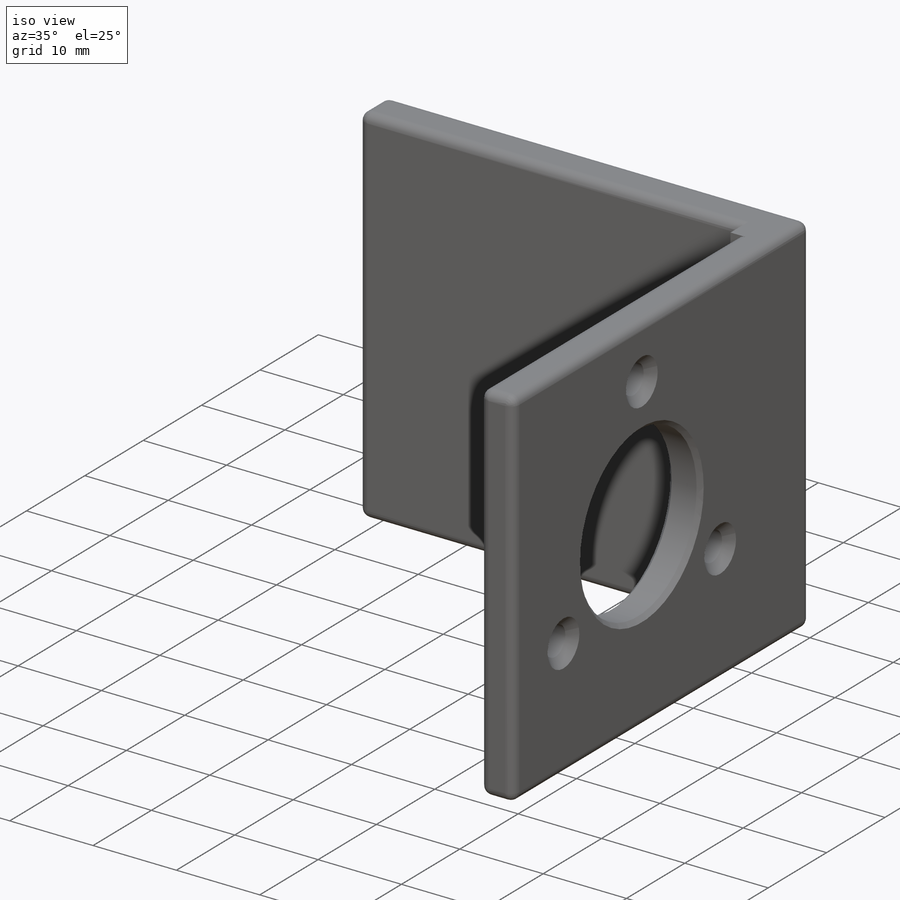
[diagram: iso view]
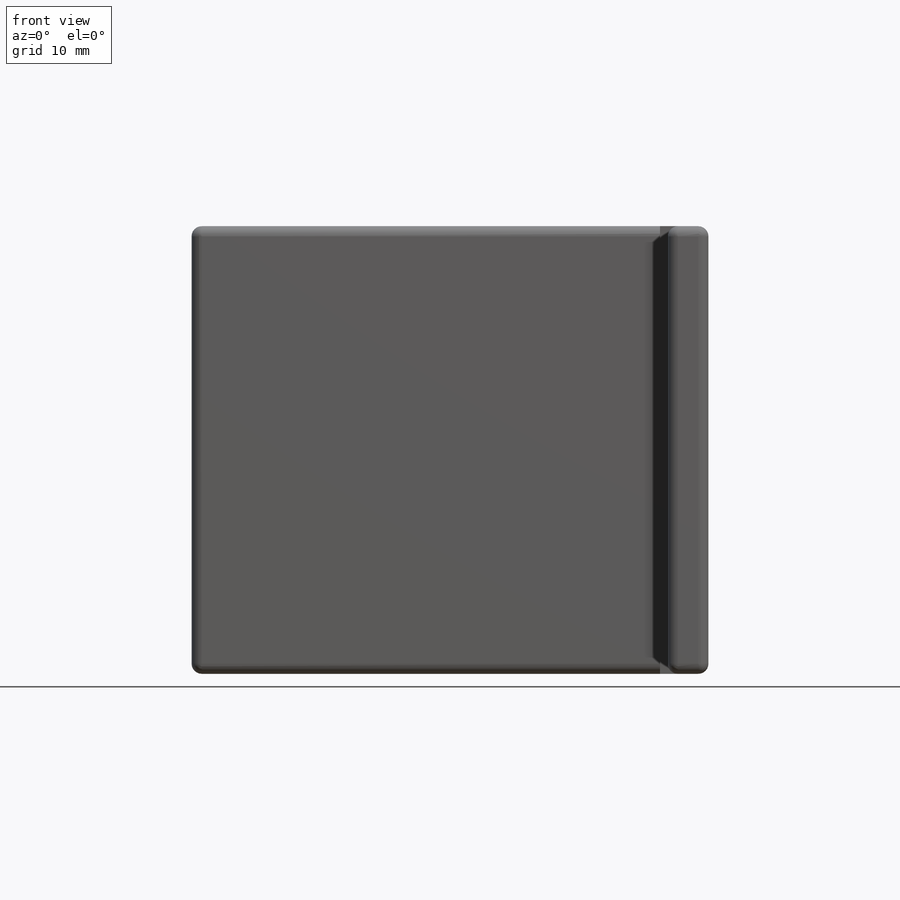
[diagram: front view]
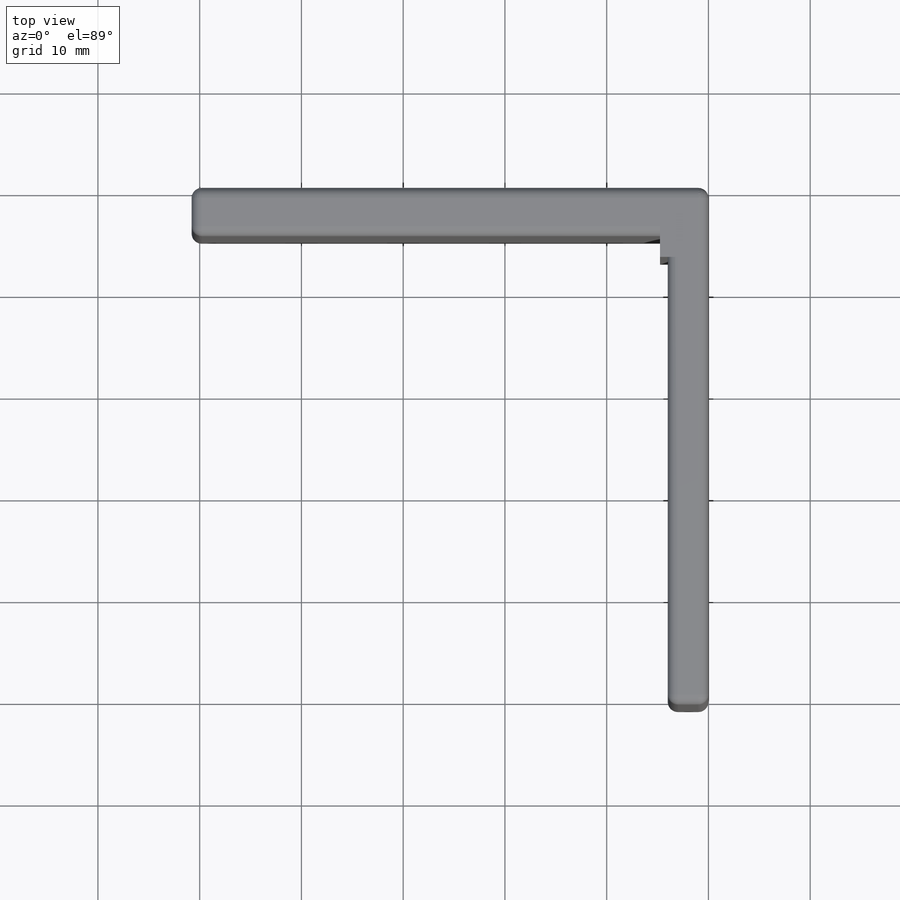
[diagram: top view]
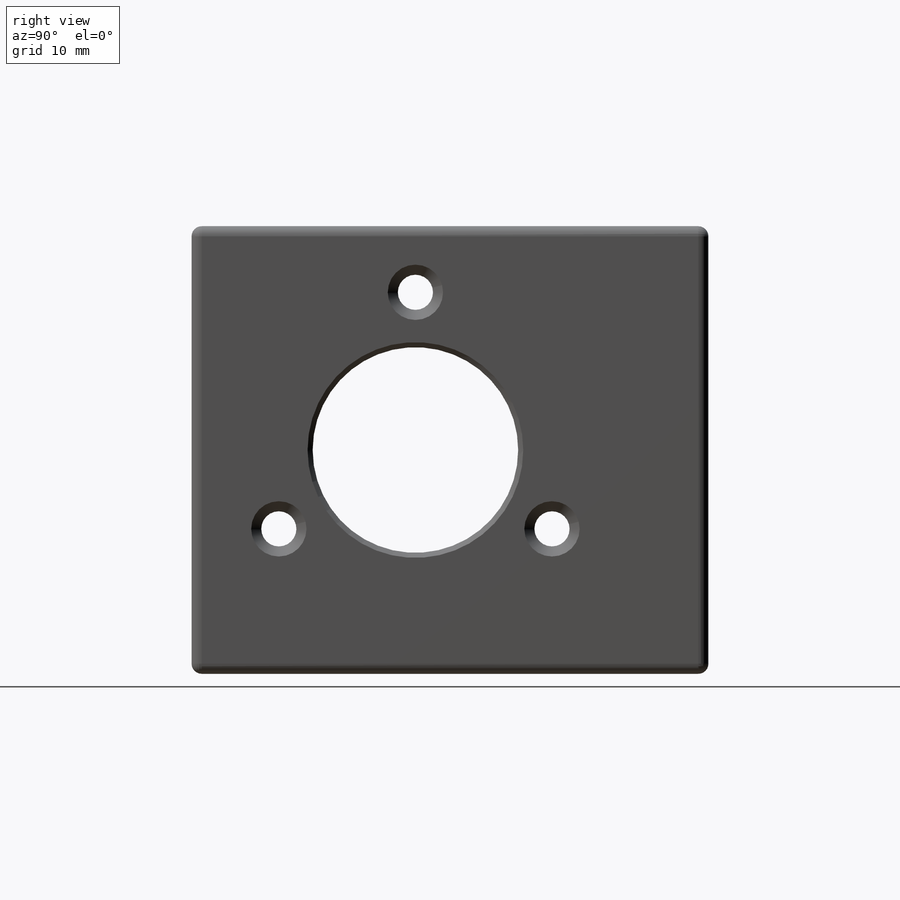
[diagram: right view]
SOLIDWORKS PART (.sldprt)
format: sldprt  version: not decoded by parser v0  size: 349,696 bytes
history: native  units: mm
features: sketch x6, thread x3, cut_extrude x2, material x1, hole x1, chamfer x1, fillet x1 (+15 scaffold rows collapsed)
feature tree (30):
  scaffold x15  (default folders/planes/origin — collapsed)
  material  "Material <not specified>"
  sketch  "Sketch2"  dims[c1.D1=50.8mm c2.D1=44.0mm c2.D5=4.7625mm c2.D6=1.0mm c2.D7=5.0mm]
  sketch  "Sketch3"  dims[D1=44.0mm]
  cut_extrude  "Cut-Extrude1"  Depth=4mm
  sketch  "Sketch4"  dims[D1=20.2mm]
  cut_extrude  "Cut-Extrude2"  [1 undecoded]
  sketch  "Sketch5"  dims[c1.D1=31.0mm c1.D2=15.5mm c2.D2=120.0deg c2.D3=15.5mm c3.D3=120.0deg]
  hole  "#8-32 Tapped Hole1"  Diameter=3.4544mm Depth=4mm
  sketch  "3DSketch1"
  sketch  "Sketch6"  dims[hole-wizard template sketch: 46 standard entries collapsed; hole parameters kept: c15.Thru Tap Drill Dia.=3.4544mm c15.Thru Tap Drill Depth=4.0mm c15.Near C'Sink Dia.=5.4356mm c15.D4=~3.666174mm c15.Near C'Sink Angle=90.0deg c15.Far C'Sink Dia.=5.4356mm c15.D6=~9.919017mm c15.Far C'Sink Angle=90.0deg]
  thread  "Hole Thread1"  Diameter=4.1656mm  [1 undecoded]
  thread  "Hole Thread2"  Diameter=4.1656mm  [1 undecoded]
  thread  "Hole Thread3"  Diameter=4.1656mm  [1 undecoded]
  chamfer  "Chamfer2"  Distance=0.5mm Angle=45deg
  fillet  "Fillet1"  Radius=1mm
decode coverage: 12 of 14 modeling features carry decoded parameters
note: ~ marks probable driven/reference dimensions
note: 4 parameter values undecoded
note: suppression state not decoded; provenance and decode notes live in map.json
